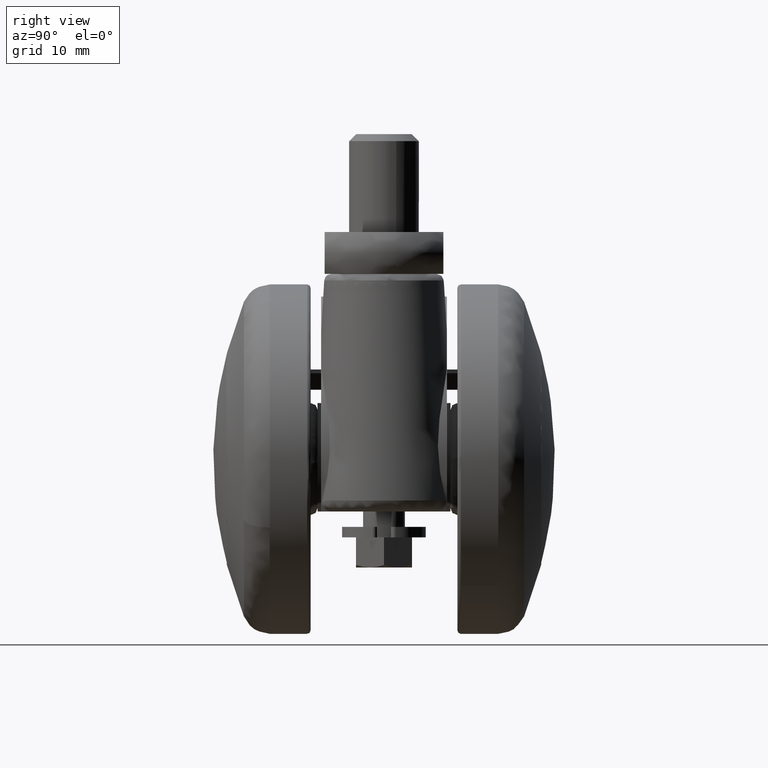
[diagram: clean part render]
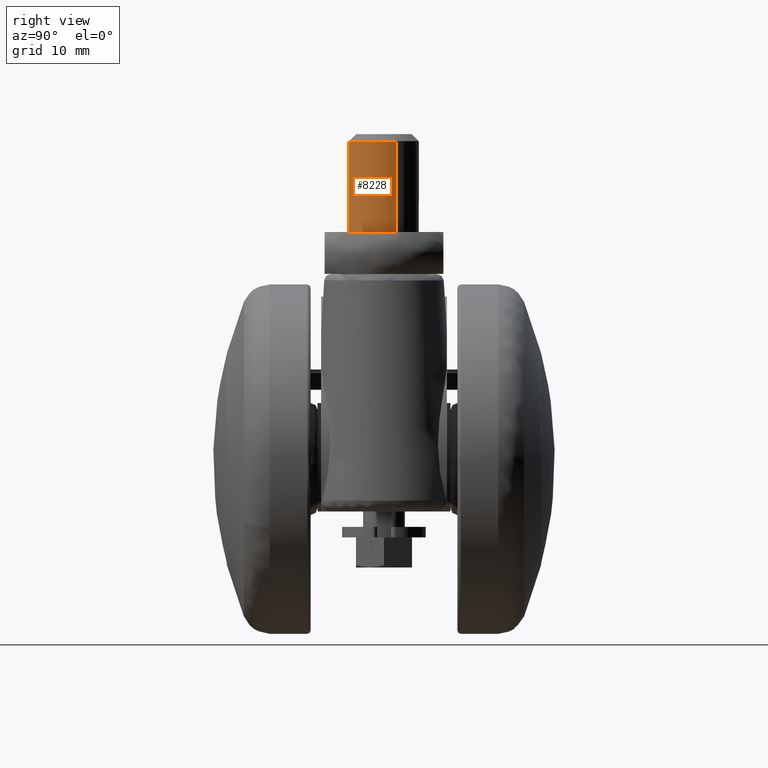
[diagram: same view with one face highlighted and labeled with its STEP entity id]
A machine part, right view. The second image highlights one B-rep face of the part: STEP entity #8228.
In plain terms, the highlighted face is a freeform B-spline surface patch.
Its self-contained STEP definition (entity closure, byte-faithful):
#8134=CARTESIAN_POINT('',(21.680717893883283,1.758089871957861,45.825000000000003));
#8135=CARTESIAN_POINT('',(21.944820096825758,1.054947258577041,45.825000000000010));
#8136=CARTESIAN_POINT('',(21.990673992109329,0.305242697674285,45.825000000000010));
#8137=CARTESIAN_POINT('',(22.295916689783621,-4.685431294435048,45.825000000000010));
#8138=CARTESIAN_POINT('',(17.305242697674281,-4.990673992109334,45.825000000000010));
#8139=CARTESIAN_POINT('',(21.680717893883283,1.758089871957861,32.166874999999990));
#8140=CARTESIAN_POINT('',(21.944820096825758,1.054947258577041,32.166874999999997));
#8141=CARTESIAN_POINT('',(21.990673992109329,0.305242697674285,32.166874999999990));
#8142=CARTESIAN_POINT('',(22.295916689783621,-4.685431294435048,32.166874999999990));
#8143=CARTESIAN_POINT('',(17.305242697674281,-4.990673992109334,32.166874999999990));
#8151=(BOUNDED_SURFACE()B_SPLINE_SURFACE(2,1,((#8134,#8139),(#8135,#8140),(#8136,#8141),(#8137,#8142),(#8138,#8143)),.UNSPECIFIED.,.F.,.F.,.U.)B_SPLINE_SURFACE_WITH_KNOTS((3,2,3),(2,2),(0.0,1.656854249492380,9.941125496954278),(0.0,13.658125000000020),.UNSPECIFIED.)GEOMETRIC_REPRESENTATION_ITEM()RATIONAL_B_SPLINE_SURFACE(((0.906274169979695,0.906274169979695),(0.941421356237309,0.941421356237309),(1.0,1.0),(0.707106781186548,0.707106781186548),(1.0,1.0)))REPRESENTATION_ITEM('')SURFACE());
#8152=CARTESIAN_POINT('',(21.680717893876150,1.758089871976863,45.500000000000000));
#8153=VERTEX_POINT('',#8152);
#8154=CARTESIAN_POINT('',(22.0,0.0,45.500000000000000));
#8155=VERTEX_POINT('',#8154);
#8156=CARTESIAN_POINT('',(21.680717893876150,1.758089871976863,45.500000000000000));
#8157=CARTESIAN_POINT('',(22.000000000000004,0.908036930354772,45.500000000000000));
#8158=CARTESIAN_POINT('',(22.0,0.0,45.500000000000000));
#8166=(BOUNDED_CURVE()B_SPLINE_CURVE(2,(#8156,#8157,#8158),.UNSPECIFIED.,.F.,.U.)B_SPLINE_CURVE_WITH_KNOTS((3,3),(0.440284170897627,0.500000000000000),.UNSPECIFIED.)CURVE()GEOMETRIC_REPRESENTATION_ITEM()RATIONAL_B_SPLINE_CURVE((0.893499554634196,0.930038554400368,1.0))REPRESENTATION_ITEM(''));
#8167=EDGE_CURVE('',#8153,#8155,#8166,.T.);
#8168=ORIENTED_EDGE('',*,*,#8167,.T.);
#8169=CARTESIAN_POINT('',(17.305242697847749,-4.990673992121531,45.499999999954468));
#8170=VERTEX_POINT('',#8169);
#8171=CARTESIAN_POINT('',(22.0,0.0,45.500000000000000));
#8172=CARTESIAN_POINT('',(21.999999999999996,-4.703530333878550,45.500000000000000));
#8173=CARTESIAN_POINT('',(17.305242697847749,-4.990673992121531,45.499999999954468));
#8181=(BOUNDED_CURVE()B_SPLINE_CURVE(2,(#8171,#8172,#8173),.UNSPECIFIED.,.F.,.U.)B_SPLINE_CURVE_WITH_KNOTS((3,3),(0.500000000000000,0.739332962218171),.UNSPECIFIED.)CURVE()GEOMETRIC_REPRESENTATION_ITEM()RATIONAL_B_SPLINE_CURVE((1.0,0.719603993311047,0.976072041622199))REPRESENTATION_ITEM(''));
#8182=EDGE_CURVE('',#8155,#8170,#8181,.T.);
#8183=ORIENTED_EDGE('',*,*,#8182,.T.);
#8184=CARTESIAN_POINT('',(17.305242697778240,-4.990673992102977,32.500000000000000));
#8185=VERTEX_POINT('',#8184);
#8186=CARTESIAN_POINT('',(17.305242697847749,-4.990673992121531,45.499999999954468));
#8187=CARTESIAN_POINT('',(17.305242697778240,-4.990673992102977,32.500000000000000));
#8188=QUASI_UNIFORM_CURVE('',1,(#8186,#8187),.UNSPECIFIED.,.F.,.U.);
#8189=EDGE_CURVE('',#8170,#8185,#8188,.T.);
#8190=ORIENTED_EDGE('',*,*,#8189,.T.);
#8191=CARTESIAN_POINT('',(22.0,0.0,32.500000000000000));
#8192=VERTEX_POINT('',#8191);
#8193=CARTESIAN_POINT('',(22.0,0.0,32.500000000000000));
#8194=CARTESIAN_POINT('',(22.000000000000011,-4.703530334332147,32.499999999999993));
#8195=CARTESIAN_POINT('',(17.305242697778237,-4.990673992102977,32.500000000000000));
#8203=(BOUNDED_CURVE()B_SPLINE_CURVE(2,(#8193,#8194,#8195),.UNSPECIFIED.,.F.,.U.)B_SPLINE_CURVE_WITH_KNOTS((3,3),(0.500000000000000,0.739332962234780),.UNSPECIFIED.)CURVE()GEOMETRIC_REPRESENTATION_ITEM()RATIONAL_B_SPLINE_CURVE((1.0,0.719603993291588,0.976072041657795))REPRESENTATION_ITEM(''));
#8204=EDGE_CURVE('',#8192,#8185,#8203,.T.);
#8205=ORIENTED_EDGE('',*,*,#8204,.F.);
#8206=CARTESIAN_POINT('',(21.680718691359239,1.758087748764298,32.500000000000000));
#8207=VERTEX_POINT('',#8206);
#8208=CARTESIAN_POINT('',(21.680718691359235,1.758087748764298,32.500000000000000));
#8209=CARTESIAN_POINT('',(22.000000000000007,0.908035758922329,32.500000000000000));
#8210=CARTESIAN_POINT('',(22.0,0.0,32.500000000000000));
#8218=(BOUNDED_CURVE()B_SPLINE_CURVE(2,(#8208,#8209,#8210),.UNSPECIFIED.,.F.,.U.)B_SPLINE_CURVE_WITH_KNOTS((3,3),(0.440284242545647,0.500000000000000),.UNSPECIFIED.)CURVE()GEOMETRIC_REPRESENTATION_ITEM()RATIONAL_B_SPLINE_CURVE((0.893499642314413,0.930038638341245,1.0))REPRESENTATION_ITEM(''));
#8219=EDGE_CURVE('',#8207,#8192,#8218,.T.);
#8220=ORIENTED_EDGE('',*,*,#8219,.F.);
#8221=CARTESIAN_POINT('',(21.680717893876150,1.758089871976863,45.500000000000000));
#8222=CARTESIAN_POINT('',(21.680718691359239,1.758087748764298,32.500000000000000));
#8223=QUASI_UNIFORM_CURVE('',1,(#8221,#8222),.UNSPECIFIED.,.F.,.U.);
#8224=EDGE_CURVE('',#8153,#8207,#8223,.T.);
#8225=ORIENTED_EDGE('',*,*,#8224,.F.);
#8226=EDGE_LOOP('',(#8168,#8183,#8190,#8205,#8220,#8225));
#8227=FACE_OUTER_BOUND('',#8226,.T.);
#8228=ADVANCED_FACE('',(#8227),#8151,.T.);